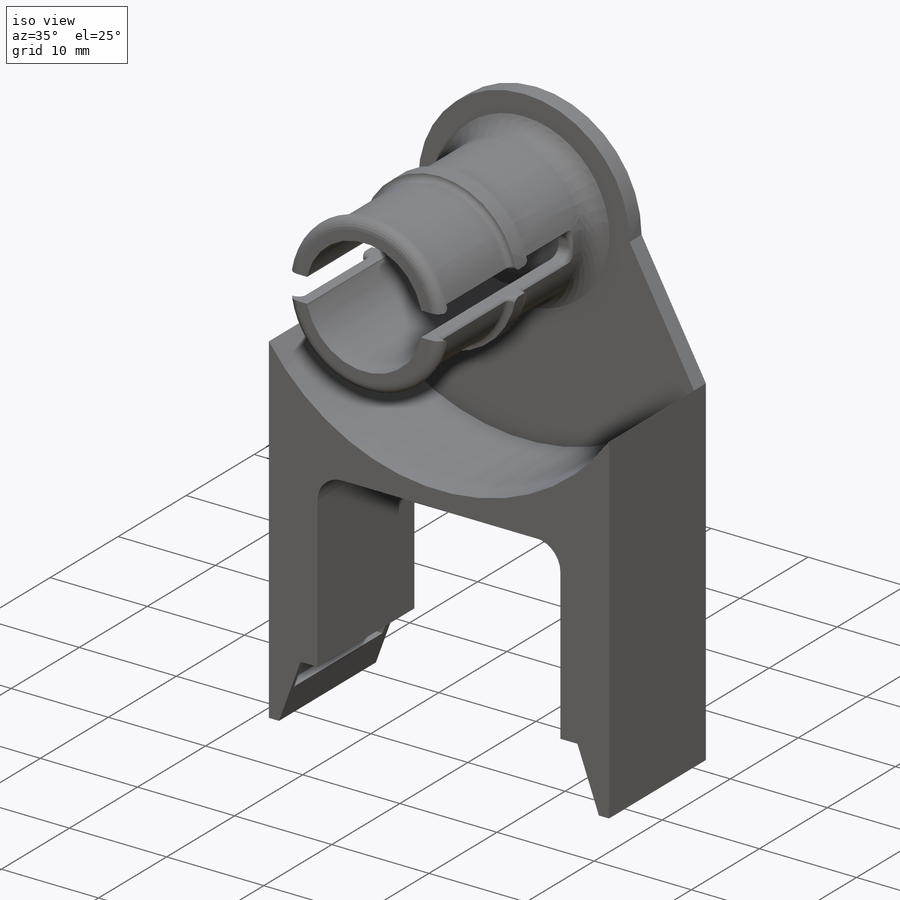
[diagram: iso view]
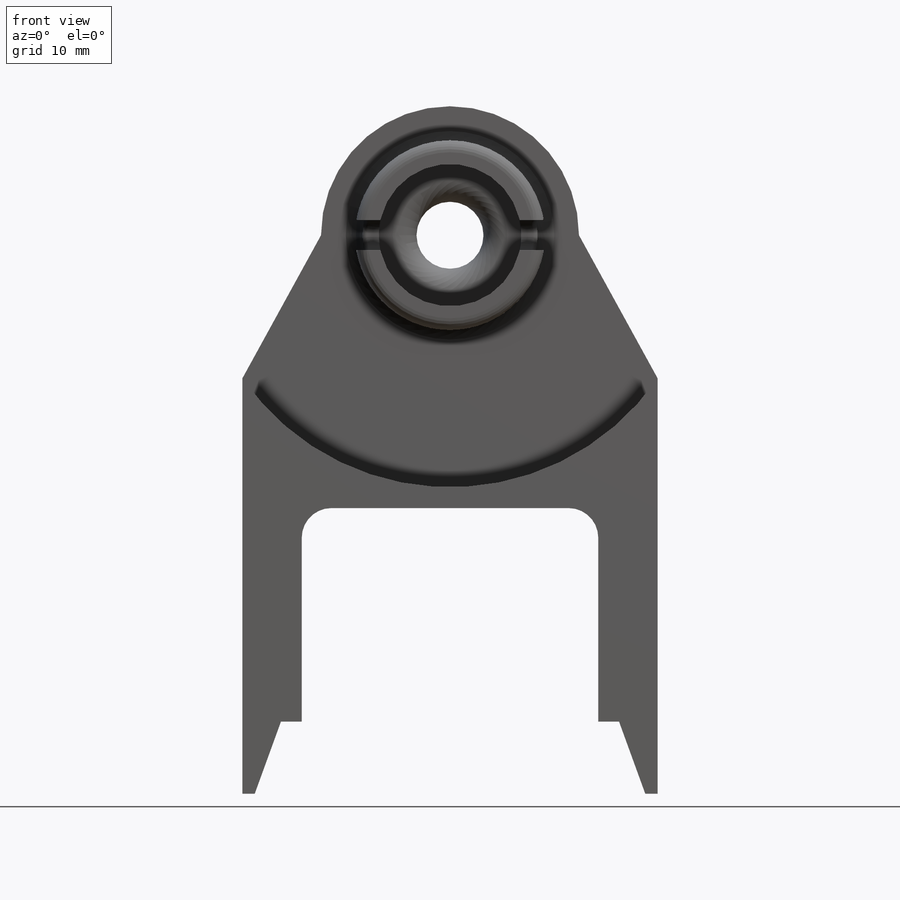
[diagram: front view]
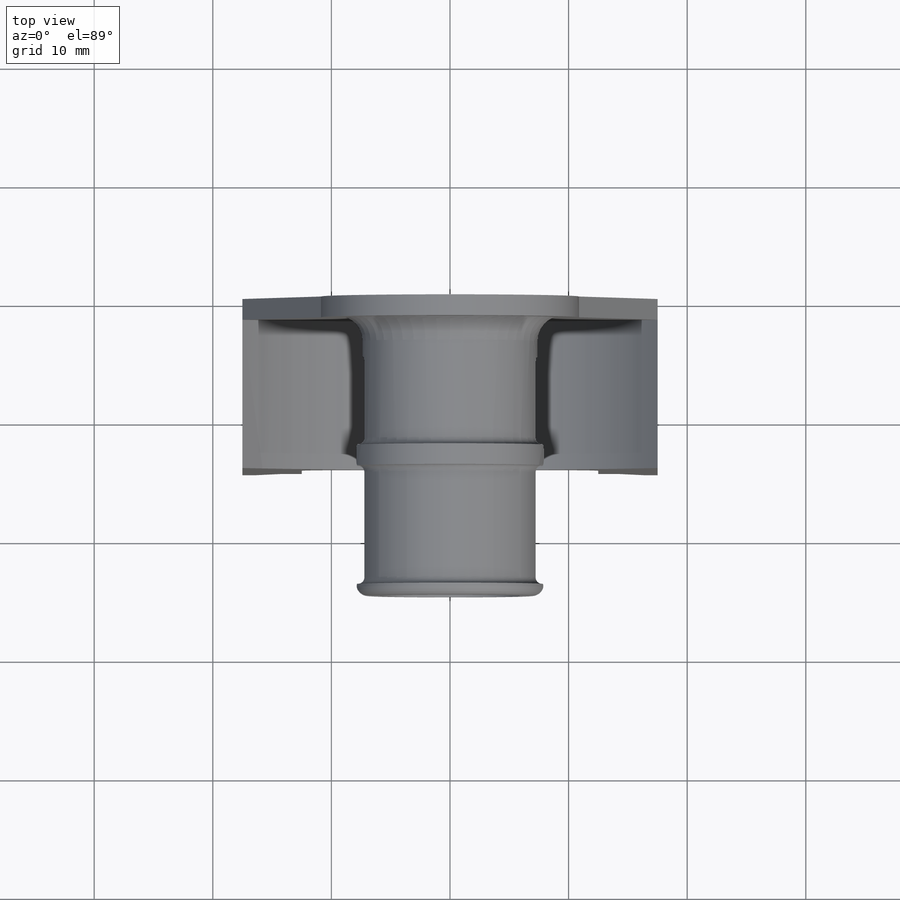
[diagram: top view]
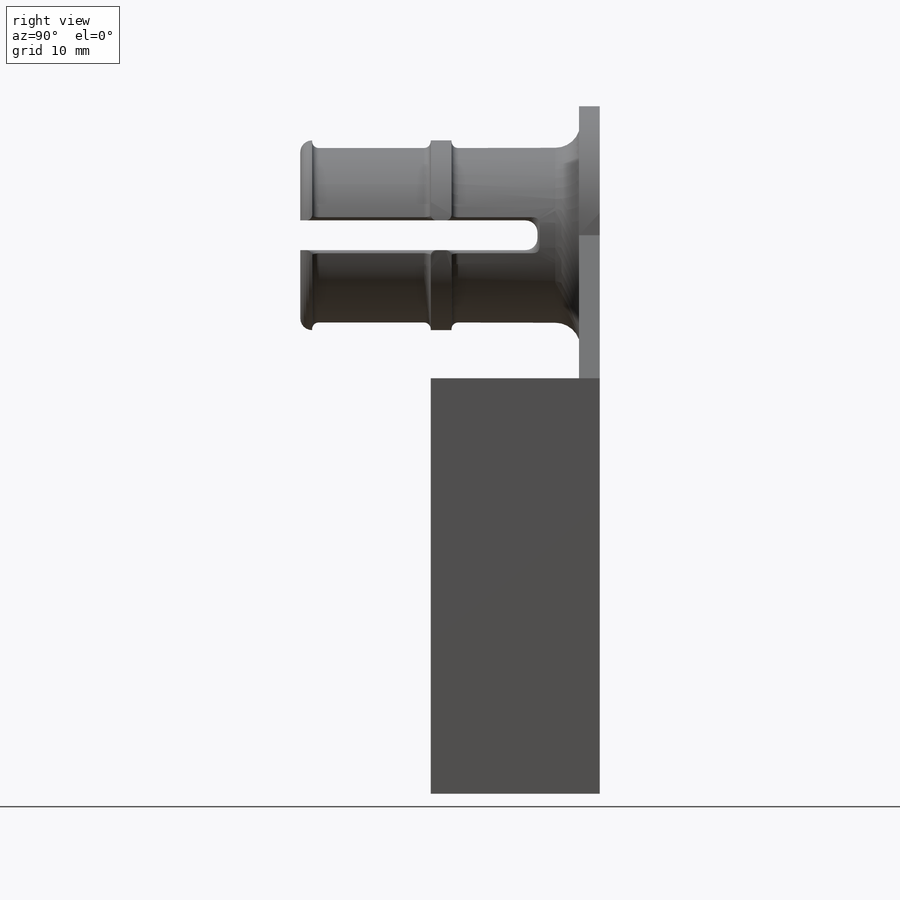
[diagram: right view]
SOLIDWORKS PART (.sldprt)
format: sldprt  version: not decoded by parser v0  size: 1,440,768 bytes
history: native  units: mm
features: sketch x47, extrude x23, fillet x23, cut_extrude x20, material x1, revolve x1, cut_revolve x1 (+13 scaffold rows collapsed)
feature tree (129):
  scaffold x13  (default folders/planes/origin — collapsed)
  material  "Material <not specified>"
  sketch  "Sketch1"  dims[D1=19.0mm D2=22.0mm]
  extrude  "Boss-Extrude1"  Depth=1.75mm
  sketch  "Sketch2"  dims[D1=14.0mm]
  extrude  "Boss-Extrude2"  Depth=1.75mm
  sketch  "Sketch3"  dims[c1.D1=1.0mm c1.D2=1.0mm c2.D1=0.5mm c2.D3=0.5mm]
  extrude  "Boss-Extrude3"  Depth=27.5mm
  sketch  "Sketch4"  dims[D1=0.5mm]
  extrude  "Boss-Extrude4"  Depth=1mm
  sketch  "Sketch6"  dims[D1=0.0mm D2=0.5mm]
  extrude  "Boss-Extrude5"  Depth=1mm
  fillet  "Fillet2"  Radius=2mm
  sketch  "Sketch9"  dims[D2=0.75mm D1=2.0mm]
  cut_extrude  "Cut-Extrude1"  Depth=1mm
  sketch  "Sketch10"  dims[D1=0.0mm]
  extrude  "Boss-Extrude6"  [1 undecoded]
  sketch  "Sketch11"  dims[D1=0.0mm]
  cut_extrude  "Cut-Extrude2"  [1 undecoded]
  sketch  "Sketch12"  dims[D1=0.5mm]
  extrude  "Boss-Extrude7"  [1 undecoded]
  sketch  "Sketch13"  dims[D1=0.5mm]
  extrude  "Boss-Extrude8"  [1 undecoded]
  sketch  "Sketch14"  dims[D1=0.5mm]
  cut_extrude  "Cut-Extrude3"  [1 undecoded]
  fillet  "Fillet3"  Radius=0.5mm
  fillet  "Fillet4"  Radius=2mm
  sketch  "Sketch15"
  cut_extrude  "Cut-Extrude4"  Depth=1mm
  sketch  "Sketch16"
  cut_extrude  "Cut-Extrude5"  [1 undecoded]
  sketch  "Sketch17"  dims[D1=0.0mm D2=0.5mm]
  extrude  "Boss-Extrude9"  Depth=1mm
  fillet  "Fillet5"  Radius=0.5mm
  sketch  "Sketch18"
  cut_extrude  "Cut-Extrude6"  Depth=1mm
  sketch  "Sketch19"
  extrude  "Boss-Extrude10"  Depth=2mm
  sketch  "Sketch20"  dims[D1=5.75mm D2=0.5mm]
  revolve  "Revolve1"  Angle=360deg
  sketch  "Sketch21"  dims[D1=5.0mm D2=5.0mm]
  cut_extrude  "Cut-Extrude7"  [1 undecoded]
  fillet  "Fillet6"  Radius=30mm
  fillet  "Fillet7"  Radius=5mm
  fillet  "Fillet8"  Radius=30mm
  fillet  "Fillet9"  Radius=30mm
  fillet  "Fillet10"  Radius=30mm
  fillet  "Fillet11"  Radius=5mm
  fillet  "Fillet12"  Radius=5mm
  fillet  "Fillet13"  Radius=5mm
  sketch  "Sketch22"  dims[D1=0.75mm]
  cut_extrude  "Cut-Extrude8"  Depth=5mm
  fillet  "Fillet14"  Radius=5mm
  sketch  "Sketch23"  dims[D1=0.125mm]
  cut_extrude  "Cut-Extrude9"  [1 undecoded]
  fillet  "Fillet15"  Radius=1mm
  sketch  "Sketch27"  dims[c1.D1=1.0mm c1.D2=3.0mm c1.D3=3.0mm c1.D4=3.0mm c2.D3=5.0mm c2.D4=5.0mm]
  cut_extrude  "Cut-Extrude11"  Depth=10mm
  sketch  "Sketch28"  dims[D1=5.65mm]
  extrude  "Boss-Extrude11"  Depth=4mm
  fillet  "Fillet16"  Radius=2mm
  sketch  "Sketch29"  dims[D1=40.0mm D6=2.5mm D7=5.0mm D10=1.25mm D11=2.5mm D2=25.0mm D3=20.0mm D4=24.0mm D8=2.0mm D9=3.0mm D5=2.0mm]
  sketch  "Sketch30"  dims[D1=0.0mm]
  extrude  "Boss-Extrude12"  [1 undecoded]
  sketch  "Sketch31"  dims[D2=5.0mm D1=0.0mm]
  extrude  "Boss-Extrude13"  Depth=12.5mm
  sketch  "Sketch32"  dims[c1.D1=2.0mm c1.D2=2.0mm c1.D3=2.0mm c1.D4=2.0mm c1.D5=2.0mm c1.D6=2.0mm c2.D3=28.0mm c2.D4=14.0mm]
  cut_extrude  "Cut-Extrude12"  Depth=8mm
  sketch  "Sketch34"
  extrude  "Boss-Extrude15"  [1 undecoded]
  fillet  "Fillet17"  Radius=2.5mm
  sketch  "Sketch35"
  extrude  "Boss-Extrude16"  [1 undecoded]
  fillet  "Fillet18"  Radius=2.5mm
  sketch  "Sketch37"  dims[D1=0.0mm D2=0.0mm]
  extrude  "Boss-Extrude17"  Depth=3.75mm
  sketch  "Sketch38"  dims[D1=0.0mm D2=0.0mm]
  cut_extrude  "Cut-Extrude13"  Depth=4mm
  sketch  "Sketch39"  dims[D1=0.0mm D2=0.0mm]
  extrude  "Boss-Extrude18"  Depth=4mm
  sketch  "Sketch40"  dims[D1=0.0mm D2=0.0mm]
  cut_extrude  "Cut-Extrude14"  Depth=4mm
  sketch  "Sketch41"  dims[D1=0.5mm]
  extrude  "Boss-Extrude19"  [1 undecoded]
  sketch  "Sketch42"  dims[D1=2.5mm]
  cut_extrude  "Cut-Extrude15"  Depth=20mm
  fillet  "Fillet19"  Radius=0.5mm
  fillet  "Fillet20"  Radius=1mm
  fillet  "Fillet21"  Radius=1mm
  sketch  "Sketch43"  dims[D1=40.5mm D2=0.0mm]
  extrude  "Boss-Extrude20"  [1 undecoded]
  fillet  "Fillet22"  Radius=6mm
  sketch  "Sketch44"  dims[c1.D1=30.0mm c1.D2=35.0mm c2.D1=~36.893221mm c2.D3=~36.893221mm]
  extrude  "Boss-Extrude21"  [1 undecoded]
  sketch  "Sketch45"
  extrude  "Boss-Extrude22"  [1 undecoded]
  sketch  "Sketch46"  dims[D1=33.5mm D2=25.0mm D3=25.0mm D4=20.0mm D5=2.75mm D6=32.5mm]
  cut_extrude  "Cut-Extrude16"  Depth=13.5mm
  sketch  "Sketch47"  dims[D1=2.0mm]
  extrude  "Boss-Extrude23"  Depth=0.5mm
  sketch  "Sketch48"
  cut_extrude  "Cut-Extrude17"  [1 undecoded]
  fillet  "Fillet23"  Radius=2mm
  sketch  "Sketch49"  dims[D1=2.5mm]
  extrude  "Boss-Extrude24"  [1 undecoded]
  sketch  "Sketch50"  dims[D1=1.0mm]
  cut_extrude  "Cut-Extrude18"  [1 undecoded]
  sketch  "Sketch51"
  cut_extrude  "Cut-Extrude19"  [1 undecoded]
  sketch  "Sketch52"
  cut_extrude  "Cut-Extrude20"  [1 undecoded]
  sketch  "Sketch53"
  cut_extrude  "Cut-Extrude21"  [1 undecoded]
  sketch  "Sketch54"  dims[D1=8.25mm D2=9.0mm]
  sketch  "Sketch55"  dims[D1=0.125mm D2=0.125mm]
  cut_revolve  "Cut-Revolve1"  Angle=360deg
  fillet  "Fillet24"  Radius=0.56mm
decode coverage: 83 of 115 modeling features carry decoded parameters
note: ~ marks probable driven/reference dimensions
note: 21 parameter values undecoded
summary: no parameter record found for 21 features
note: suppression state not decoded; provenance and decode notes live in map.json
